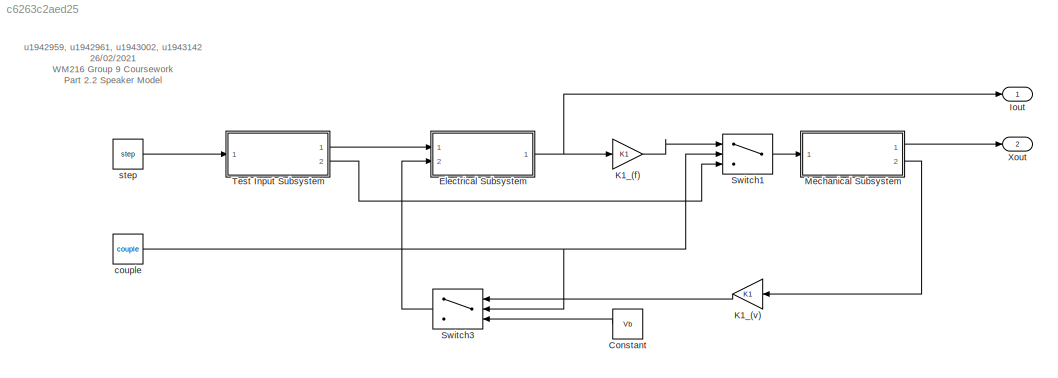
MODEL slx_c6263c2aed25
KIND model
CONFIG AbsTol = auto
CONFIG EnableMultiTasking = off
CONFIG FixedStep = auto
CONFIG InitFcn = SimFramework('model_parameters.json');\n
CONFIG MaxStep = auto
CONFIG MinStep = auto
CONFIG RelTol = 1e-3
CONFIG SampleTimeConstraint = Unconstrained
CONFIG SolverName = VariableStepAuto
CONFIG StartTime = 0.0
CONFIG StopTime = StopTime
WORKSPACE source: mxarray member
WORKSPACE D = 0.5
WORKSPACE Fsin = 1
WORKSPACE Fstep = 10
WORKSPACE FstepOffTime = 5
WORKSPACE FstepOnTime = 1
WORKSPACE K = 500
WORKSPACE K1 = 5
WORKSPACE L = 20
WORKSPACE R = 75
WORKSPACE Vb = 0.1
WORKSPACE Vsin = 1
WORKSPACE Vstep = 1
WORKSPACE VstepOffTime = 100
WORKSPACE VstepOnTime = 1
WORKSPACE couple = 1
WORKSPACE freq = 1000
WORKSPACE m = 0.004
WORKSPACE name = 'speakerModel'
WORKSPACE step = 1
BLOCK [Constant] Constant
  NameLocation = top
  Value = Vb
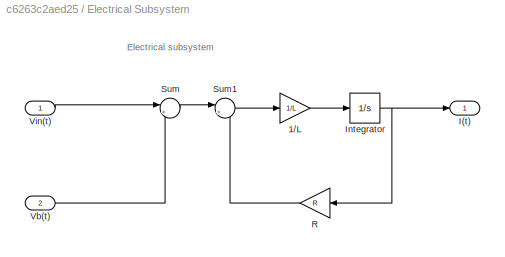
BLOCK [SubSystem] Electrical Subsystem
  Ports = [2, 1]
  RequestExecContextInheritance = off
BLOCK [Gain] Electrical Subsystem/1//L
  Gain = 1/L
BLOCK [Outport] Electrical Subsystem/I(t)
  VectorParamsAs1DForOutWhenUnconnected = off
BLOCK [Integrator] Electrical Subsystem/Integrator
  Ports = [1, 1]
BLOCK [Gain] Electrical Subsystem/R
  Gain = R
  NameLocation = top
BLOCK [Sum] Electrical Subsystem/Sum
  Inputs = |+-
  Ports = [2, 1]
BLOCK [Sum] Electrical Subsystem/Sum1
  Inputs = |+-
  Ports = [2, 1]
BLOCK [Inport] Electrical Subsystem/Vb(t)
  Port = 2
BLOCK [Inport] Electrical Subsystem/Vin(t)
BLOCK [Outport] Iout
  SignalName = Iout
BLOCK [Gain] K1_(f)
  Gain = K1
BLOCK [Gain] K1_(v)
  Gain = K1
  NameLocation = top
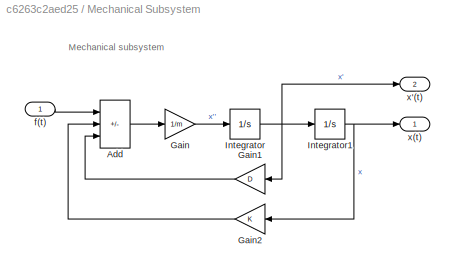
BLOCK [SubSystem] Mechanical Subsystem
  Ports = [1, 2]
  RequestExecContextInheritance = off
BLOCK [Sum] Mechanical Subsystem/Add
  IconShape = rectangular
  Inputs = +--
  Ports = [3, 1]
BLOCK [Gain] Mechanical Subsystem/Gain
  Gain = 1/m
BLOCK [Gain] Mechanical Subsystem/Gain1
  Gain = D
BLOCK [Gain] Mechanical Subsystem/Gain2
  Gain = K
BLOCK [Integrator] Mechanical Subsystem/Integrator
  Ports = [1, 1]
BLOCK [Integrator] Mechanical Subsystem/Integrator1
  Ports = [1, 1]
BLOCK [Inport] Mechanical Subsystem/f(t)
BLOCK [Outport] Mechanical Subsystem/x'(t)
  Port = 2
  VectorParamsAs1DForOutWhenUnconnected = off
BLOCK [Outport] Mechanical Subsystem/x(t)
  VectorParamsAs1DForOutWhenUnconnected = off
BLOCK [Switch] Switch1
  Criteria = u2 > Threshold
  InputSameDT = off
  SaturateOnIntegerOverflow = off
BLOCK [Switch] Switch3
  Criteria = u2 > Threshold
  InputSameDT = off
  NameLocation = top
  SaturateOnIntegerOverflow = off
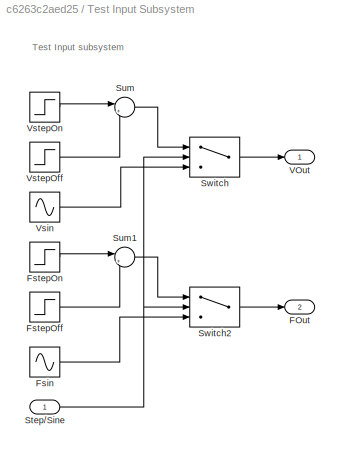
BLOCK [SubSystem] Test Input Subsystem
  Ports = [1, 2]
  RequestExecContextInheritance = off
BLOCK [Outport] Test Input Subsystem/FOut
  Port = 2
BLOCK [Sin] Test Input Subsystem/Fsin
  Amplitude = Fsin
  Frequency = freq
  Ports = [0, 1]
  SampleTime = 0
BLOCK [Step] Test Input Subsystem/FstepOff
  After = Fstep
  SampleTime = 0
  Time = FstepOffTime
BLOCK [Step] Test Input Subsystem/FstepOn
  After = Fstep
  SampleTime = 0
  Time = FstepOnTime
BLOCK [Inport] Test Input Subsystem/Step//Sine
BLOCK [Sum] Test Input Subsystem/Sum
  Inputs = |+-
  Ports = [2, 1]
BLOCK [Sum] Test Input Subsystem/Sum1
  Inputs = |+-
  Ports = [2, 1]
BLOCK [Switch] Test Input Subsystem/Switch
  Criteria = u2 > Threshold
  InputSameDT = off
  SaturateOnIntegerOverflow = off
BLOCK [Switch] Test Input Subsystem/Switch2
  Criteria = u2 > Threshold
  InputSameDT = off
  SaturateOnIntegerOverflow = off
BLOCK [Outport] Test Input Subsystem/VOut
BLOCK [Sin] Test Input Subsystem/Vsin
  Amplitude = Vsin
  Frequency = freq
  Ports = [0, 1]
  SampleTime = 0
BLOCK [Step] Test Input Subsystem/VstepOff
  After = Vstep
  SampleTime = 0
  Time = VstepOffTime
BLOCK [Step] Test Input Subsystem/VstepOn
  After = Vstep
  SampleTime = 0
  Time = VstepOnTime
BLOCK [Outport] Xout
  Port = 2
  SignalName = Xout
BLOCK [Constant] couple
  Value = couple
BLOCK [Constant] step
  Value = step
ANNOTATION (root): u1942959, u1942961, u1943002, u1943142 26/02/2021 WM216 Group 9 Coursework Part 2.2 Speaker Model
ANNOTATION Electrical Subsystem: Electrical subsystem
ANNOTATION Mechanical Subsystem: Mechanical subsystem
ANNOTATION Test Input Subsystem: Test Input subsystem
LINE Constant:1 -> Switch3:3
LINE Electrical Subsystem/1//L:1 -> Electrical Subsystem/Integrator:1
NET Electrical Subsystem/Integrator:1 -> Electrical Subsystem/I(t):1, Electrical Subsystem/R:1
LINE Electrical Subsystem/R:1 -> Electrical Subsystem/Sum1:2
LINE Electrical Subsystem/Sum1:1 -> Electrical Subsystem/1//L:1
LINE Electrical Subsystem/Sum:1 -> Electrical Subsystem/Sum1:1
LINE Electrical Subsystem/Vb(t):1 -> Electrical Subsystem/Sum:2
LINE Electrical Subsystem/Vin(t):1 -> Electrical Subsystem/Sum:1
NET Electrical Subsystem:1 -> Iout:1, K1_(f):1
LINE K1_(f):1 -> Switch1:1
LINE K1_(v):1 -> Switch3:1
LINE Mechanical Subsystem/Add:1 -> Mechanical Subsystem/Gain:1
LINE Mechanical Subsystem/Gain1:1 -> Mechanical Subsystem/Add:3
LINE Mechanical Subsystem/Gain2:1 -> Mechanical Subsystem/Add:2
LINE Mechanical Subsystem/Gain:1 -> Mechanical Subsystem/Integrator:1
NET Mechanical Subsystem/Integrator1:1 -> Mechanical Subsystem/Gain2:1, Mechanical Subsystem/x(t):1
NET Mechanical Subsystem/Integrator:1 -> Mechanical Subsystem/Gain1:1, Mechanical Subsystem/Integrator1:1, Mechanical Subsystem/x'(t):1
LINE Mechanical Subsystem/f(t):1 -> Mechanical Subsystem/Add:1
LINE Mechanical Subsystem:1 -> Xout:1
LINE Mechanical Subsystem:2 -> K1_(v):1
LINE Switch1:1 -> Mechanical Subsystem:1
LINE Switch3:1 -> Electrical Subsystem:2
LINE Test Input Subsystem/Fsin:1 -> Test Input Subsystem/Switch2:3
LINE Test Input Subsystem/FstepOff:1 -> Test Input Subsystem/Sum1:2
LINE Test Input Subsystem/FstepOn:1 -> Test Input Subsystem/Sum1:1
NET Test Input Subsystem/Step//Sine:1 -> Test Input Subsystem/Switch2:2, Test Input Subsystem/Switch:2
LINE Test Input Subsystem/Sum1:1 -> Test Input Subsystem/Switch2:1
LINE Test Input Subsystem/Sum:1 -> Test Input Subsystem/Switch:1
LINE Test Input Subsystem/Switch2:1 -> Test Input Subsystem/FOut:1
LINE Test Input Subsystem/Switch:1 -> Test Input Subsystem/VOut:1
LINE Test Input Subsystem/Vsin:1 -> Test Input Subsystem/Switch:3
LINE Test Input Subsystem/VstepOff:1 -> Test Input Subsystem/Sum:2
LINE Test Input Subsystem/VstepOn:1 -> Test Input Subsystem/Sum:1
LINE Test Input Subsystem:1 -> Electrical Subsystem:1
LINE Test Input Subsystem:2 -> Switch1:3
NET couple:1 -> Switch1:2, Switch3:2
LINE step:1 -> Test Input Subsystem:1
note: NET lines group one-source signal fan-out (src -> all destinations, sorted); 1:1 wires keep LINE
